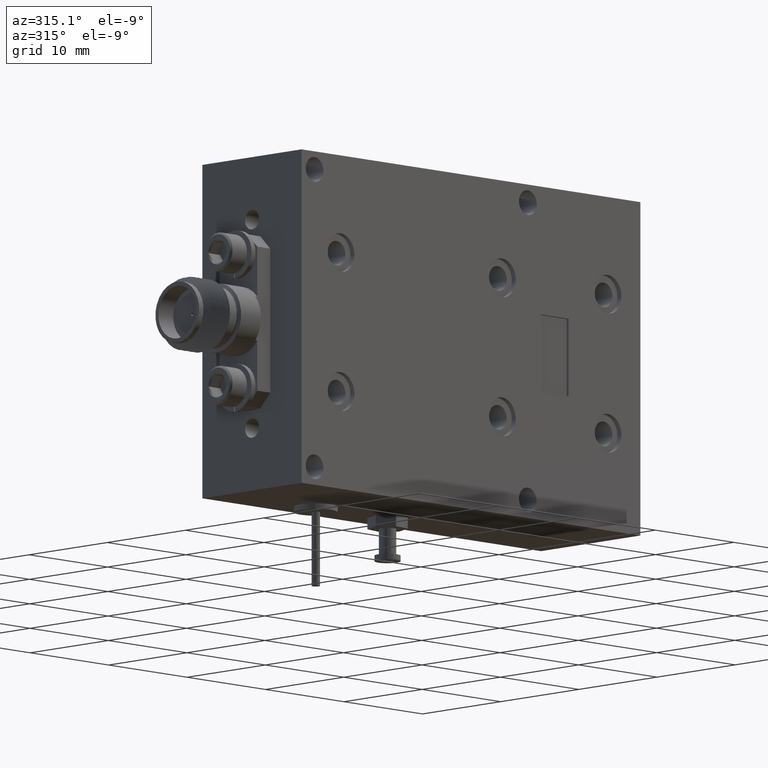
[diagram: clean part render]
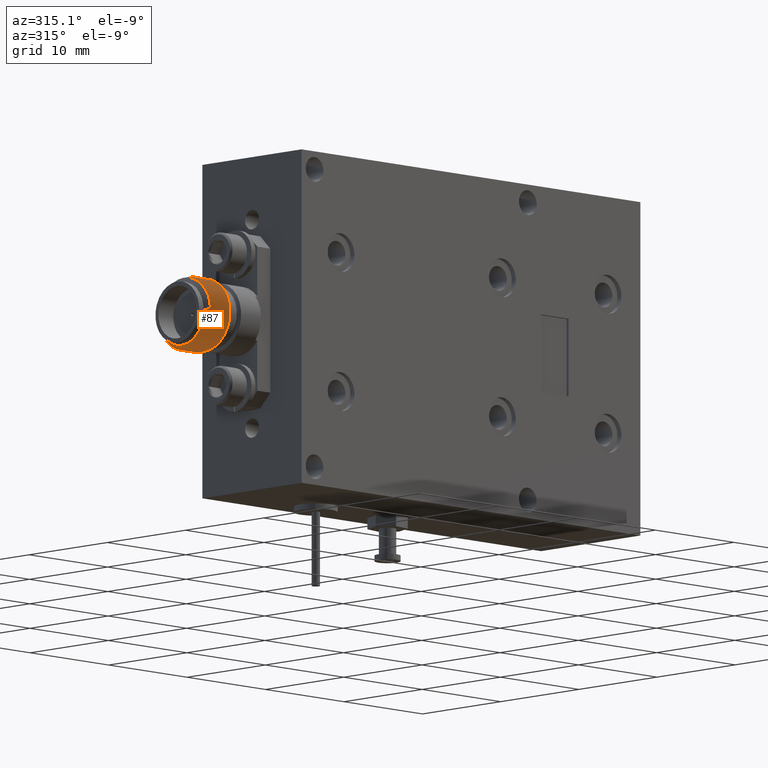
[diagram: same view with one face highlighted and labeled with its STEP entity id]
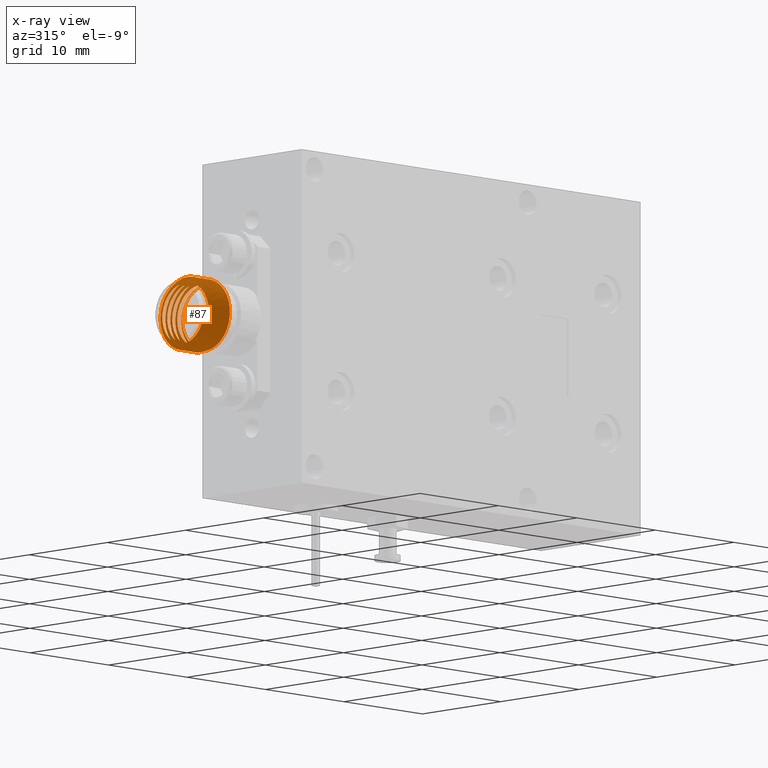
[diagram: x-ray of the same camera — body ghosted, the highlighted face saturated]
A machine part, auxiliary view. The second image highlights one B-rep face of the part: STEP entity #87.
The next image is the same camera in x-ray: the body ghosted, the highlighted face saturated — about 0% of this face is hidden behind the body in this view.
In plain terms, the highlighted face is a freeform B-spline surface patch.
Its self-contained STEP definition (entity closure, byte-faithful):
#30 = CARTESIAN_POINT ( 'NONE',  ( -0.8983333333333342100, 0.1945669872981078100, -0.09551279441628693400 ) ) ;
#87 = ADVANCED_FACE ( 'NONE', ( #4660 ), #1472, .F. ) ;
#122 = CARTESIAN_POINT ( 'NONE',  ( -0.9462500000000008100, 0.2500000000000003900, -0.1275170592217165500 ) ) ;
#131 = CARTESIAN_POINT ( 'NONE',  ( -0.8303468447427854200, 0.1787019060655348800, 0.08754802019685041500 ) ) ;
#164 = CARTESIAN_POINT ( 'NONE',  ( -0.8358333333333345400, 0.3054330127018927700, 0.09651279441628932100 ) ) ;
#184 = ORIENTED_EDGE ( 'NONE', *, *, #8806, .F. ) ;
#208 = CARTESIAN_POINT ( 'NONE',  ( -0.9150000000000008100, 0.1174833395016044000, 0.0005000000000011703000 ) ) ;
#252 = CARTESIAN_POINT ( 'NONE',  ( -0.8337500000000012100, 0.2500000000000002200, 0.1285170592217189100 ) ) ;
#270 = CARTESIAN_POINT ( 'NONE',  ( -0.9045833333333344100, 0.3825166604983957800, -0.07600852961085813300 ) ) ;
#292 =( BOUNDED_CURVE ( )  B_SPLINE_CURVE ( 2, ( #9619, #4553, #8720, #1364, #11842, #1495, #3597, #6496, #2562, #1313, #354, #8765, #12790, #9802, #10884, #7625, #11924, #270, #6543, #8642, #7532, #3431, #311, #2420, #3476, #13008, #6804, #675, #4728, #9848, #4774, #6844, #6709, #6755, #578, #2693, #12105, #3646, #1585, #12056, #8936, #3698, #10972, #9991, #12010, #5851, #13137, #10926, #7892 ),
 .UNSPECIFIED., .F., .T. ) 
 B_SPLINE_CURVE_WITH_KNOTS ( ( 3, 2, 2, 2, 2, 2, 2, 2, 2, 2, 2, 2, 2, 2, 2, 2, 2, 2, 2, 2, 2, 2, 2, 2, 3 ),
 ( 0.1428571428571428500, 0.1666666666666666600, 0.1904761904761904700, 0.2142857142857142700, 0.2380952380952380800, 0.2619047619047619200, 0.2857142857142857000, 0.3095238095238095300, 0.3333333333333333100, 0.3571428571428571500, 0.3809523809523809300, 0.4047619047619047700, 0.4285714285714285500, 0.4523809523809523800, 0.4761904761904761600, 0.5000000000000000000, 0.5238095238095238400, 0.5476190476190476700, 0.5714285714285714000, 0.5952380952380952300, 0.6190476190476190700, 0.6428571428571427900, 0.6666666666666665200, 0.6904761904761904700, 0.7021188828821798300 ),
 .UNSPECIFIED. ) 
 CURVE ( )  GEOMETRIC_REPRESENTATION_ITEM ( )  RATIONAL_B_SPLINE_CURVE ( ( 1.000000000000000000, 0.8660254037844387100, 1.000000000000000000, 0.8660254037844387100, 1.000000000000000000, 0.8660254037844387100, 1.000000000000000000, 0.8660254037844387100, 1.000000000000000000, 0.8660254037844387100, 1.000000000000000000, 0.8660254037844387100, 1.000000000000000000, 0.8660254037844387100, 1.000000000000000000, 0.8660254037844387100, 1.000000000000000000, 0.8660254037844387100, 1.000000000000000000, 0.8660254037844387100, 1.000000000000000000, 0.8660254037844387100, 1.000000000000000000, 0.8660254037844387100, 1.000000000000000000, 0.8660254037844387100, 1.000000000000000000, 0.8660254037844387100, 1.000000000000000000, 0.8660254037844387100, 1.000000000000000000, 0.8660254037844387100, 1.000000000000000000, 0.8660254037844387100, 1.000000000000000000, 0.8660254037844387100, 1.000000000000000000, 0.8660254037844387100, 1.000000000000000000, 0.8660254037844387100, 1.000000000000000000, 0.8660254037844387100, 1.000000000000000000, 0.8660254037844387100, 1.000000000000000000, 0.8660254037844387100, 1.000000000000000000, 0.9344873494139149800, 0.9330451645437170000 ) ) 
 REPRESENTATION_ITEM ( '' )  );
#297 = CARTESIAN_POINT ( 'NONE',  ( -0.9400000000000006100, 0.1174833395016042800, 0.0005000000000010336900 ) ) ;
#311 = CARTESIAN_POINT ( 'NONE',  ( -0.8941666666666675500, 0.1837416697508025600, 0.1152627944162896400 ) ) ;
#338 = CARTESIAN_POINT ( 'NONE',  ( -0.8962500000000009900, 0.2500000000000003900, 0.1535170592217190200 ) ) ;
#354 = CARTESIAN_POINT ( 'NONE',  ( -0.9191666666666673500, 0.1837416697508022800, 0.1152627944162895000 ) ) ;
#385 = CARTESIAN_POINT ( 'NONE',  ( -0.8566666666666676900, 0.3162583302491979700, -0.1142627944162871000 ) ) ;
#433 = CARTESIAN_POINT ( 'NONE',  ( -0.8691666666666676400, 0.1837416697508022800, 0.1152627944162895000 ) ) ;
#519 = CARTESIAN_POINT ( 'NONE',  ( -0.8900000000000009000, 0.1174833395016044000, 0.0005000000000010336900 ) ) ;
#578 = CARTESIAN_POINT ( 'NONE',  ( -0.8691666666666676400, 0.1837416697508025600, 0.1152627944162895000 ) ) ;
#606 = CARTESIAN_POINT ( 'NONE',  ( -0.8402521300887770800, 0.1312434325007503200, -0.05179399979166712100 ) ) ;
#655 = CARTESIAN_POINT ( 'NONE',  ( -0.8421324865405186400, 0.1360268255377178600, 0.06810754996771720100 ) ) ;
#656 = VERTEX_POINT ( 'NONE', #9583 ) ;
#675 = CARTESIAN_POINT ( 'NONE',  ( -0.8837500000000008100, 0.2499999999999997500, -0.1525170592217167400 ) ) ;
#689 = CARTESIAN_POINT ( 'NONE',  ( -0.8379412432702687500, 0.2499999999994674800, -0.1247572142074404900 ) ) ;
#702 = CARTESIAN_POINT ( 'NONE',  ( -0.8391733376476385700, 0.1752176390169134500, -0.1027864727182624400 ) ) ;
#735 = CARTESIAN_POINT ( 'NONE',  ( -0.8335655439545212000, 0.3457105285942939600, 0.06941069041169757600 ) ) ;
#738 = CARTESIAN_POINT ( 'NONE',  ( -0.9212500000000012300, 0.2500000000000002200, -0.1275170592217167200 ) ) ;
#775 = CARTESIAN_POINT ( 'NONE',  ( -0.8369373838376272800, 0.3097551437346788800, -0.1078880589665458200 ) ) ;
#821 = CARTESIAN_POINT ( 'NONE',  ( -0.8754166666666677300, 0.1391339745962156000, -0.06350852961085751100 ) ) ;
#870 = CARTESIAN_POINT ( 'NONE',  ( -0.9504166666666674600, 0.1391339745962156000, -0.06350852961085766400 ) ) ;
#922 = CARTESIAN_POINT ( 'NONE',  ( -0.9358333333333339600, 0.3054330127018929400, 0.09651279441628932100 ) ) ;
#949 = CARTESIAN_POINT ( 'NONE',  ( -0.9400000000000006100, 0.3608660254037848700, 0.0005000000000010193800 ) ) ;
#990 = CARTESIAN_POINT ( 'NONE',  ( -0.9566666666666677800, 0.1945669872981077300, 0.09651279441628932100 ) ) ;
#1033 = CARTESIAN_POINT ( 'NONE',  ( -0.9670833333333344100, 0.3608660254037851000, -0.06350852961085784500 ) ) ;
#1076 = CARTESIAN_POINT ( 'NONE',  ( -0.8962500000000009900, 0.2500000000000003900, -0.1275170592217165500 ) ) ;
#1161 = CARTESIAN_POINT ( 'NONE',  ( -0.8483333333333343800, 0.1945669872981078100, -0.09551279441628721100 ) ) ;
#1205 = CARTESIAN_POINT ( 'NONE',  ( -0.8296324865405186900, 0.1546478170536250100, 0.05706179626031840400 ) ) ;
#1207 = CARTESIAN_POINT ( 'NONE',  ( -0.9504166666666679100, 0.3825166604983960500, 0.07700852961085970200 ) ) ;
#1255 = CARTESIAN_POINT ( 'NONE',  ( -0.8587500000000012300, 0.2500000000000002200, 0.1285170592217189100 ) ) ;
#1269 = VERTEX_POINT ( 'NONE', #11591 ) ;
#1298 = CARTESIAN_POINT ( 'NONE',  ( -0.9650000000000010800, 0.1174833395016042800, 0.0005000000000010336900 ) ) ;
#1313 = CARTESIAN_POINT ( 'NONE',  ( -0.9212500000000010100, 0.2500000000000003900, 0.1535170592217190400 ) ) ;
#1348 = CARTESIAN_POINT ( 'NONE',  ( -0.8566666666666676900, 0.1945669872981078700, 0.09651279441628946000 ) ) ;
#1364 = CARTESIAN_POINT ( 'NONE',  ( -0.9337500000000011900, 0.2500000000000000600, -0.1525170592217167400 ) ) ;
#1393 = CARTESIAN_POINT ( 'NONE',  ( -0.8420833333333341800, 0.1174833395016044200, 0.07700852961086003500 ) ) ;
#1437 = CARTESIAN_POINT ( 'NONE',  ( -0.8295833333333348900, 0.3825166604983958900, -0.07600852961085798100 ) ) ;
#1472 =( BOUNDED_SURFACE ( )  B_SPLINE_SURFACE ( 1, 2, ( 
 ( #5272, #10365, #11518, #6349, #4225, #1033, #5146, #7209, #12411, #6184, #990, #3045, #5236, #7295, #7251, #122, #12549, #8208, #949, #10500, #9255, #8306, #6312, #2047, #4263, #10414, #2096, #3173, #9340, #9299, #3087, #8397, #4178, #10315, #7337, #11468, #12505, #6268, #30, #1076, #4095, #2185, #9419, #5318, #3218, #8360, #2141, #9383, #6483, #4398, #6526, #12727, #3260, #8482, #11644, #4441, #10594, #1255, #1348, #10552, #2272, #3460, #1161, #9649, #9466, #8628, #6441, #9512, #164, #252, #6572, #5362, #7383, #5544, #12684, #3354, #8530, #2319, #2362, #9565, #8581, #3311, #7516, #10740, #10641 ),
 ( #1298, #11693, #9602, #7430, #3408, #11729, #5446, #1207, #6392, #10687, #5500, #12768, #297, #4304, #7566, #2404, #4485, #5407, #11775, #12823, #8438, #2228, #4351, #11602, #208, #12638, #7471, #2591, #5623, #13031, #9784, #5704, #1530, #338, #2628, #8707, #519, #2452, #3586, #11999, #5745, #12904, #9832, #4671, #12994, #8796, #433, #7610, #9879, #7743, #6738, #7788, #385, #7694, #1577, #6659, #3504, #5668, #6696, #1393, #7656, #1482, #2549, #11951, #10779, #1437, #12940, #3630, #8753, #11873, #8668, #2496, #4580, #8836, #10870, #3545, #9700, #10823, #3685, #10914, #10955, #12863, #4535, #4626, #11913 ) ),
 .UNSPECIFIED., .F., .F., .T. ) 
 B_SPLINE_SURFACE_WITH_KNOTS ( ( 2, 2 ),
 ( 3, 2, 2, 2, 2, 2, 2, 2, 2, 2, 2, 2, 2, 2, 2, 2, 2, 2, 2, 2, 2, 2, 2, 2, 2, 2, 2, 2, 2, 2, 2, 2, 2, 2, 2, 2, 2, 2, 2, 2, 2, 2, 3 ),
 ( 0.0000000000000000000, 1.000000000000000000 ),
 ( 0.0000000000000000000, 0.02380952380952380800, 0.04761904761904761600, 0.07142857142857142500, 0.09523809523809523300, 0.1190476190476190400, 0.1428571428571428500, 0.1666666666666666600, 0.1904761904761904700, 0.2142857142857142700, 0.2380952380952380800, 0.2619047619047619200, 0.2857142857142857000, 0.3095238095238095300, 0.3333333333333333100, 0.3571428571428571500, 0.3809523809523809300, 0.4047619047619047700, 0.4285714285714285500, 0.4523809523809523800, 0.4761904761904761600, 0.5000000000000000000, 0.5238095238095238400, 0.5476190476190476700, 0.5714285714285714000, 0.5952380952380952300, 0.6190476190476190700, 0.6428571428571429000, 0.6666666666666666300, 0.6904761904761904700, 0.7142857142857143000, 0.7380952380952381400, 0.7619047619047618600, 0.7857142857142857000, 0.8095238095238095300, 0.8333333333333333700, 0.8571428571428571000, 0.8809523809523809300, 0.9047619047619047700, 0.9285714285714286000, 0.9523809523809523300, 0.9761904761904761600, 1.000000000000000000 ),
 .UNSPECIFIED. ) 
 GEOMETRIC_REPRESENTATION_ITEM ( )  RATIONAL_B_SPLINE_SURFACE ( (
 ( 1.000000000000000000, 0.8660254037844387100, 1.000000000000000000, 0.8660254037844387100, 1.000000000000000000, 0.8660254037844387100, 1.000000000000000000, 0.8660254037844387100, 1.000000000000000000, 0.8660254037844387100, 1.000000000000000000, 0.8660254037844387100, 1.000000000000000000, 0.8660254037844387100, 1.000000000000000000, 0.8660254037844387100, 1.000000000000000000, 0.8660254037844387100, 1.000000000000000000, 0.8660254037844387100, 1.000000000000000000, 0.8660254037844387100, 1.000000000000000000, 0.8660254037844387100, 1.000000000000000000, 0.8660254037844387100, 1.000000000000000000, 0.8660254037844387100, 1.000000000000000000, 0.8660254037844387100, 1.000000000000000000, 0.8660254037844387100, 1.000000000000000000, 0.8660254037844387100, 1.000000000000000000, 0.8660254037844387100, 1.000000000000000000, 0.8660254037844387100, 1.000000000000000000, 0.8660254037844387100, 1.000000000000000000, 0.8660254037844387100, 1.000000000000000000, 0.8660254037844387100, 1.000000000000000000, 0.8660254037844387100, 1.000000000000000000, 0.8660254037844387100, 1.000000000000000000, 0.8660254037844387100, 1.000000000000000000, 0.8660254037844387100, 1.000000000000000000, 0.8660254037844387100, 1.000000000000000000, 0.8660254037844387100, 1.000000000000000000, 0.8660254037844387100, 1.000000000000000000, 0.8660254037844387100, 1.000000000000000000, 0.8660254037844387100, 1.000000000000000000, 0.8660254037844387100, 1.000000000000000000, 0.8660254037844387100, 1.000000000000000000, 0.8660254037844387100, 1.000000000000000000, 0.8660254037844387100, 1.000000000000000000, 0.8660254037844387100, 1.000000000000000000, 0.8660254037844387100, 1.000000000000000000, 0.8660254037844387100, 1.000000000000000000, 0.8660254037844387100, 1.000000000000000000, 0.8660254037844387100, 1.000000000000000000, 0.8660254037844387100, 1.000000000000000000, 0.8660254037844387100, 1.000000000000000000),
 ( 1.000000000000000000, 0.8660254037844387100, 1.000000000000000000, 0.8660254037844387100, 1.000000000000000000, 0.8660254037844387100, 1.000000000000000000, 0.8660254037844387100, 1.000000000000000000, 0.8660254037844387100, 1.000000000000000000, 0.8660254037844387100, 1.000000000000000000, 0.8660254037844387100, 1.000000000000000000, 0.8660254037844387100, 1.000000000000000000, 0.8660254037844387100, 1.000000000000000000, 0.8660254037844387100, 1.000000000000000000, 0.8660254037844387100, 1.000000000000000000, 0.8660254037844387100, 1.000000000000000000, 0.8660254037844387100, 1.000000000000000000, 0.8660254037844387100, 1.000000000000000000, 0.8660254037844387100, 1.000000000000000000, 0.8660254037844387100, 1.000000000000000000, 0.8660254037844387100, 1.000000000000000000, 0.8660254037844387100, 1.000000000000000000, 0.8660254037844387100, 1.000000000000000000, 0.8660254037844387100, 1.000000000000000000, 0.8660254037844387100, 1.000000000000000000, 0.8660254037844387100, 1.000000000000000000, 0.8660254037844387100, 1.000000000000000000, 0.8660254037844387100, 1.000000000000000000, 0.8660254037844387100, 1.000000000000000000, 0.8660254037844387100, 1.000000000000000000, 0.8660254037844387100, 1.000000000000000000, 0.8660254037844387100, 1.000000000000000000, 0.8660254037844387100, 1.000000000000000000, 0.8660254037844387100, 1.000000000000000000, 0.8660254037844387100, 1.000000000000000000, 0.8660254037844387100, 1.000000000000000000, 0.8660254037844387100, 1.000000000000000000, 0.8660254037844387100, 1.000000000000000000, 0.8660254037844387100, 1.000000000000000000, 0.8660254037844387100, 1.000000000000000000, 0.8660254037844387100, 1.000000000000000000, 0.8660254037844387100, 1.000000000000000000, 0.8660254037844387100, 1.000000000000000000, 0.8660254037844387100, 1.000000000000000000, 0.8660254037844387100, 1.000000000000000000, 0.8660254037844387100, 1.000000000000000000) ) ) 
 REPRESENTATION_ITEM ( '' )  SURFACE ( )  );
#1482 = CARTESIAN_POINT ( 'NONE',  ( -0.8379166666666675300, 0.1174833395016042600, -0.07600852961085763400 ) ) ;
#1495 = CARTESIAN_POINT ( 'NONE',  ( -0.9295833333333342100, 0.3825166604983957800, -0.07600852961085813300 ) ) ;
#1530 = CARTESIAN_POINT ( 'NONE',  ( -0.8983333333333342100, 0.3162583302491982500, 0.1152627944162892300 ) ) ;
#1577 = CARTESIAN_POINT ( 'NONE',  ( -0.8525000000000010300, 0.3825166604983962200, 0.0005000000000010181800 ) ) ;
#1585 = CARTESIAN_POINT ( 'NONE',  ( -0.8608333333333343400, 0.1837416697508018300, -0.1142627944162869800 ) ) ;
#1697 = CARTESIAN_POINT ( 'NONE',  ( -0.8380354135476145700, 0.2443381568307403100, -0.1249203219123426300 ) ) ;
#1734 = CARTESIAN_POINT ( 'NONE',  ( -0.8318335030740544600, 0.2578139484000208600, 0.1151782978681266400 ) ) ;
#1748 = CARTESIAN_POINT ( 'NONE',  ( -0.8381305370760091500, 0.2385963754304256700, -0.1246940583174619100 ) ) ;
#1780 = CARTESIAN_POINT ( 'NONE',  ( -0.9066666666666675100, 0.1945669872981078700, 0.09651279441628946000 ) ) ;
#1819 = CARTESIAN_POINT ( 'NONE',  ( -0.8365768976475663800, 0.3289236849974518900, -0.09402482295675247700 ) ) ;
#1822 = CARTESIAN_POINT ( 'NONE',  ( -0.9170833333333345800, 0.3608660254037850400, -0.06350852961085799700 ) ) ;
#1877 = CARTESIAN_POINT ( 'NONE',  ( -0.8525000000000010300, 0.1391339745962153200, 0.0005000000000014422200 ) ) ;
#1924 = CARTESIAN_POINT ( 'NONE',  ( -0.8378107045315984500, 0.2578484410004216500, -0.1245311144797410800 ) ) ;
#1927 = CARTESIAN_POINT ( 'NONE',  ( -0.8670833333333344300, 0.3608660254037847600, -0.06350852961085816400 ) ) ;
#1967 = CARTESIAN_POINT ( 'NONE',  ( -0.9087500000000010600, 0.2500000000000003900, 0.1285170592217190500 ) ) ;
#2047 = CARTESIAN_POINT ( 'NONE',  ( -0.9295833333333342100, 0.1391339745962154300, 0.06450852961086006600 ) ) ;
#2063 = CARTESIAN_POINT ( 'NONE',  ( -0.8296324865405185800, 0.1546478170536250100, 0.05706179626031840400 ) ) ;
#2096 = CARTESIAN_POINT ( 'NONE',  ( -0.9233333333333340100, 0.1945669872981078100, -0.09551279441628721100 ) ) ;
#2141 = CARTESIAN_POINT ( 'NONE',  ( -0.8816666666666676000, 0.1945669872981077300, 0.09651279441628932100 ) ) ;
#2185 = CARTESIAN_POINT ( 'NONE',  ( -0.8920833333333346700, 0.3608660254037852100, -0.06350852961085784500 ) ) ;
#2192 = CARTESIAN_POINT ( 'NONE',  ( -0.8308261805167598300, 0.2030860000215450600, 0.1036912406214401400 ) ) ;
#2228 = CARTESIAN_POINT ( 'NONE',  ( -0.9212500000000010100, 0.2500000000000003900, 0.1535170592217190200 ) ) ;
#2272 = CARTESIAN_POINT ( 'NONE',  ( -0.8525000000000010300, 0.1391339745962153200, 0.0005000000000010325000 ) ) ;
#2283 = CARTESIAN_POINT ( 'NONE',  ( -0.8296324865405186900, 0.1546478170536250100, 0.05706179626031840400 ) ) ;
#2319 = CARTESIAN_POINT ( 'NONE',  ( -0.8170833333333346000, 0.3608660254037851000, -0.06350852961085784500 ) ) ;
#2362 = CARTESIAN_POINT ( 'NONE',  ( -0.8150000000000012800, 0.3608660254037848700, 0.0005000000000008827700 ) ) ;
#2386 = B_SPLINE_CURVE_WITH_KNOTS ( 'NONE', 3,
 ( #655, #8876, #12214, #13163, #7961, #5965, #3850, #6782, #9916, #4802, #3720, #6824, #606, #5833, #13119, #7871, #6874, #702, #8918, #2722, #7915, #5872, #3804, #1748, #1697, #10015 ),
 .UNSPECIFIED., .F., .F.,
 ( 4, 2, 2, 2, 2, 2, 2, 2, 2, 2, 2, 2, 4 ),
 ( 1.659927335255204000E-017, 0.0008579063843754446400, 0.001286859576563159000, 0.001715812768750873400, 0.002144765960938587700, 0.002573719153126302400, 0.003431625537501731700, 0.004289531921877161500, 0.004718485114064875300, 0.005147438306252589100, 0.006005344690628016700, 0.006434297882815731400, 0.006863251075003446900 ),
 .UNSPECIFIED. ) ;
#2404 = CARTESIAN_POINT ( 'NONE',  ( -0.9337500000000013000, 0.2500000000000002200, -0.1525170592217169100 ) ) ;
#2420 = CARTESIAN_POINT ( 'NONE',  ( -0.8920833333333343400, 0.1174833395016045800, 0.07700852961086049300 ) ) ;
#2452 = CARTESIAN_POINT ( 'NONE',  ( -0.8879166666666676900, 0.1174833395016044200, -0.07600852961085748100 ) ) ;
#2496 = CARTESIAN_POINT ( 'NONE',  ( -0.8170833333333343800, 0.1174833395016044200, 0.07700852961086003500 ) ) ;
#2549 = CARTESIAN_POINT ( 'NONE',  ( -0.8358333333333345400, 0.1837416697508021100, -0.1142627944162871000 ) ) ;
#2562 = CARTESIAN_POINT ( 'NONE',  ( -0.9233333333333340100, 0.3162583302491983600, 0.1152627944162892300 ) ) ;
#2591 = CARTESIAN_POINT ( 'NONE',  ( -0.9087500000000012800, 0.2500000000000002200, -0.1525170592217167400 ) ) ;
#2628 = CARTESIAN_POINT ( 'NONE',  ( -0.8941666666666675500, 0.1837416697508022800, 0.1152627944162893700 ) ) ;
#2693 = CARTESIAN_POINT ( 'NONE',  ( -0.8670833333333342100, 0.1174833395016045800, 0.07700852961086049300 ) ) ;
#2722 = CARTESIAN_POINT ( 'NONE',  ( -0.8388482190470728500, 0.1946557617826109300, -0.1141703653398023200 ) ) ;
#2754 = CARTESIAN_POINT ( 'NONE',  ( -0.8376810943759308600, 0.2655985490232556900, -0.1235754303303966100 ) ) ;
#2792 = CARTESIAN_POINT ( 'NONE',  ( -0.8338413869221571500, 0.3543840754559844900, 0.05640911240565875400 ) ) ;
#2796 = CARTESIAN_POINT ( 'NONE',  ( -0.9045833333333344100, 0.1391339745962154300, 0.06450852961086039900 ) ) ;
#2834 = CARTESIAN_POINT ( 'NONE',  ( -0.8733333333333342900, 0.1945669872981078100, -0.09551279441628693400 ) ) ;
#2884 = CARTESIAN_POINT ( 'NONE',  ( -0.8566666666666676900, 0.1945669872981079800, 0.09651279441628959900 ) ) ;
#2965 = CARTESIAN_POINT ( 'NONE',  ( -0.9316666666666673100, 0.1945669872981077300, 0.09651279441628932100 ) ) ;
#3045 = CARTESIAN_POINT ( 'NONE',  ( -0.9545833333333341200, 0.1391339745962154300, 0.06450852961086006600 ) ) ;
#3087 = CARTESIAN_POINT ( 'NONE',  ( -0.9150000000000008100, 0.3608660254037848700, 0.0005000000000010193800 ) ) ;
#3173 = CARTESIAN_POINT ( 'NONE',  ( -0.9212500000000012300, 0.2500000000000003900, -0.1275170592217165500 ) ) ;
#3218 = CARTESIAN_POINT ( 'NONE',  ( -0.8858333333333342500, 0.3054330127018927700, 0.09651279441628932100 ) ) ;
#3260 = CARTESIAN_POINT ( 'NONE',  ( -0.8691666666666676400, 0.3054330127018927700, -0.09551279441628721100 ) ) ;
#3311 = CARTESIAN_POINT ( 'NONE',  ( -0.8087500000000010800, 0.2500000000000003900, 0.1285170592217187400 ) ) ;
#3354 = CARTESIAN_POINT ( 'NONE',  ( -0.8212500000000010300, 0.2500000000000003900, -0.1275170592217167200 ) ) ;
#3408 = CARTESIAN_POINT ( 'NONE',  ( -0.9566666666666672200, 0.3162583302491982500, -0.1142627944162871000 ) ) ;
#3431 = CARTESIAN_POINT ( 'NONE',  ( -0.8962500000000009900, 0.2500000000000008900, 0.1535170592217188500 ) ) ;
#3460 = CARTESIAN_POINT ( 'NONE',  ( -0.8504166666666674900, 0.1391339745962154300, -0.06350852961085766400 ) ) ;
#3476 = CARTESIAN_POINT ( 'NONE',  ( -0.8900000000000009000, 0.1174833395016044000, 0.0005000000000011703000 ) ) ;
#3504 = CARTESIAN_POINT ( 'NONE',  ( -0.8483333333333343800, 0.3162583302491982500, 0.1152627944162892300 ) ) ;
#3545 = CARTESIAN_POINT ( 'NONE',  ( -0.8087500000000010800, 0.2500000000000002200, -0.1525170592217167400 ) ) ;
#3586 = CARTESIAN_POINT ( 'NONE',  ( -0.8858333333333342500, 0.1837416697508021100, -0.1142627944162872400 ) ) ;
#3597 = CARTESIAN_POINT ( 'NONE',  ( -0.9275000000000006600, 0.3825166604983960500, 0.0005000000000010181800 ) ) ;
#3630 = CARTESIAN_POINT ( 'NONE',  ( -0.8254166666666679100, 0.3825166604983958900, 0.07700852961085984100 ) ) ;
#3646 = CARTESIAN_POINT ( 'NONE',  ( -0.8629166666666678900, 0.1174833395016042800, -0.07600852961085748100 ) ) ;
#3685 = CARTESIAN_POINT ( 'NONE',  ( -0.8025000000000013200, 0.3825166604983960500, 0.0005000000000010181800 ) ) ;
#3698 = CARTESIAN_POINT ( 'NONE',  ( -0.8545833333333345800, 0.3825166604983954400, -0.07600852961085845200 ) ) ;
#3720 = CARTESIAN_POINT ( 'NONE',  ( -0.8406930208675336100, 0.1223800921195780400, -0.02501633295677895300 ) ) ;
#3792 = CARTESIAN_POINT ( 'NONE',  ( -0.8331540262986965000, 0.3295075033588833500, 0.08665119897513126600 ) ) ;
#3804 = CARTESIAN_POINT ( 'NONE',  ( -0.8383162026348400800, 0.2273464212998994600, -0.1234809885701353000 ) ) ;
#3841 = CARTESIAN_POINT ( 'NONE',  ( -0.8691666666666676400, 0.3054330127018924900, -0.09551279441628733600 ) ) ;
#3850 = CARTESIAN_POINT ( 'NONE',  ( -0.8411809607611633300, 0.1192696713304595100, 0.008735268253938652200 ) ) ;
#3880 = CARTESIAN_POINT ( 'NONE',  ( -0.8374237707686791300, 0.2809033750555866600, -0.1202143536808234800 ) ) ;
#3883 = CARTESIAN_POINT ( 'NONE',  ( -0.9379166666666678400, 0.3608660254037848700, 0.06450852961085973300 ) ) ;
#3927 = CARTESIAN_POINT ( 'NONE',  ( -0.8361955939364554800, 0.3454570550508379000, -0.07742779841996765000 ) ) ;
#3932 = CARTESIAN_POINT ( 'NONE',  ( -0.8962500000000009900, 0.2500000000000002200, -0.1275170592217165500 ) ) ;
#3973 = CARTESIAN_POINT ( 'NONE',  ( -0.8342534777683874300, 0.3640764629710779900, 0.03482779135702506600 ) ) ;
#3975 = CARTESIAN_POINT ( 'NONE',  ( -0.8879166666666676900, 0.3608660254037848700, 0.06450852961085973300 ) ) ;
#4025 = CARTESIAN_POINT ( 'NONE',  ( -0.8587500000000012300, 0.2500000000000005600, 0.1285170592217189100 ) ) ;
#4095 = CARTESIAN_POINT ( 'NONE',  ( -0.8941666666666675500, 0.3054330127018927700, -0.09551279441628721100 ) ) ;
#4134 = CARTESIAN_POINT ( 'NONE',  ( -0.9525000000000011200, 0.1391339745962153200, 0.0005000000000011691100 ) ) ;
#4137 =( BOUNDED_CURVE ( )  B_SPLINE_CURVE ( 2, ( #12163, #870, #5021, #8036, #4975, #4886, #12293, #3883, #922, #9125, #2965, #11248, #5909, #9178, #13194, #738, #9043, #1822, #10136, #7989, #8173, #1967, #1780, #2796, #10048, #9085, #6003, #3932, #11210, #6043, #13288, #3975, #12204, #10187, #5064, #7038, #7085, #821, #2834, #11172, #3841, #1927, #10236, #4923, #8084, #4025, #2884, #5954, #1877, #8126, #13242, #11293, #6098, #13372, #7133, #6143, #11396, #8321, #12521, #8280, #2063 ),
 .UNSPECIFIED., .F., .F. ) 
 B_SPLINE_CURVE_WITH_KNOTS ( ( 3, 2, 2, 2, 2, 2, 2, 2, 2, 2, 2, 2, 2, 2, 2, 2, 2, 2, 2, 2, 2, 2, 2, 2, 2, 2, 2, 2, 2, 2, 3 ),
 ( 0.1428571428571428500, 0.1666666666666666600, 0.1904761904761904700, 0.2142857142857142700, 0.2380952380952380800, 0.2619047619047619200, 0.2857142857142857000, 0.3095238095238095300, 0.3333333333333333100, 0.3571428571428571500, 0.3809523809523809300, 0.4047619047619047700, 0.4285714285714285500, 0.4523809523809523800, 0.4761904761904761600, 0.5000000000000000000, 0.5238095238095237200, 0.5476190476190476700, 0.5714285714285714000, 0.5952380952380951200, 0.6190476190476190700, 0.6428571428571427900, 0.6666666666666665200, 0.6904761904761904700, 0.7142857142857141900, 0.7380952380952381400, 0.7619047619047618600, 0.7857142857142855900, 0.8095238095238095300, 0.8333333333333332600, 0.8449760257393235100 ),
 .UNSPECIFIED. ) 
 CURVE ( )  GEOMETRIC_REPRESENTATION_ITEM ( )  RATIONAL_B_SPLINE_CURVE ( ( 1.000000000000000000, 0.8660254037844387100, 1.000000000000000000, 0.8660254037844387100, 1.000000000000000000, 0.8660254037844387100, 1.000000000000000000, 0.8660254037844387100, 1.000000000000000000, 0.8660254037844387100, 1.000000000000000000, 0.8660254037844387100, 1.000000000000000000, 0.8660254037844387100, 1.000000000000000000, 0.8660254037844387100, 1.000000000000000000, 0.8660254037844387100, 1.000000000000000000, 0.8660254037844387100, 1.000000000000000000, 0.8660254037844387100, 1.000000000000000000, 0.8660254037844387100, 1.000000000000000000, 0.8660254037844387100, 1.000000000000000000, 0.8660254037844387100, 1.000000000000000000, 0.8660254037844387100, 1.000000000000000000, 0.8660254037844387100, 1.000000000000000000, 0.8660254037844387100, 1.000000000000000000, 0.8660254037844387100, 1.000000000000000000, 0.8660254037844387100, 1.000000000000000000, 0.8660254037844387100, 1.000000000000000000, 0.8660254037844387100, 1.000000000000000000, 0.8660254037844387100, 1.000000000000000000, 0.8660254037844387100, 1.000000000000000000, 0.8660254037844387100, 1.000000000000000000, 0.8660254037844387100, 1.000000000000000000, 0.8660254037844387100, 1.000000000000000000, 0.8660254037844387100, 1.000000000000000000, 0.8660254037844387100, 1.000000000000000000, 0.8660254037844387100, 1.000000000000000000, 0.9344873494139096500, 0.9330451645437166700 ) ) 
 REPRESENTATION_ITEM ( '' )  );
#4178 = CARTESIAN_POINT ( 'NONE',  ( -0.9108333333333341600, 0.3054330127018927700, 0.09651279441628932100 ) ) ;
#4225 = CARTESIAN_POINT ( 'NONE',  ( -0.9691666666666671800, 0.3054330127018927700, -0.09551279441628721100 ) ) ;
#4257 = EDGE_LOOP ( 'NONE', ( #184, #6790, #12966, #13028, #9112, #12405 ) ) ;
#4263 = CARTESIAN_POINT ( 'NONE',  ( -0.9275000000000006600, 0.1391339745962153200, 0.0005000000000010325000 ) ) ;
#4304 = CARTESIAN_POINT ( 'NONE',  ( -0.9379166666666672900, 0.1174833395016044200, -0.07600852961085763400 ) ) ;
#4348 = B_SPLINE_CURVE_WITH_KNOTS ( 'NONE', 3,
 ( #689, #1924, #2754, #3880, #12202, #11167, #775, #11207, #1819, #3927, #12158, #4971, #7081, #9082, #8080, #12242, #7951, #10181, #3973, #11246, #2792, #735, #4881, #3792, #10006, #11076, #4836, #12115, #13151, #6910, #1734, #13192 ),
 .UNSPECIFIED., .F., .F.,
 ( 4, 2, 2, 2, 2, 2, 2, 2, 2, 2, 2, 2, 2, 2, 2, 4 ),
 ( 0.006863251075003446900, 0.007457865535476585100, 0.008052479995949723300, 0.008647094456422862300, 0.009241708916895999600, 0.01043093783784227400, 0.01102555229831541300, 0.01162016675878855100, 0.01221478121926169000, 0.01280939567973482700, 0.01340401014020796400, 0.01399862460068110300, 0.01459323906115424200, 0.01518785352162738000, 0.01578246798210052000, 0.01637708244257365600 ),
 .UNSPECIFIED. ) ;
#4351 = CARTESIAN_POINT ( 'NONE',  ( -0.9191666666666673500, 0.1837416697508022800, 0.1152627944162893700 ) ) ;
#4398 = CARTESIAN_POINT ( 'NONE',  ( -0.8754166666666677300, 0.1391339745962154300, -0.06350852961085766400 ) ) ;
#4414 = EDGE_CURVE ( 'NONE', #1269, #10742, #10262, .T. ) ;
#4441 = CARTESIAN_POINT ( 'NONE',  ( -0.8629166666666678900, 0.3608660254037848700, 0.06450852961085988500 ) ) ;
#4485 = CARTESIAN_POINT ( 'NONE',  ( -0.9316666666666673100, 0.3162583302491982500, -0.1142627944162872400 ) ) ;
#4503 = CARTESIAN_POINT ( 'NONE',  ( -0.9525000000000011200, 0.1391339745962153200, 0.0005000000000011691100 ) ) ;
#4535 = CARTESIAN_POINT ( 'NONE',  ( -0.7941666666666680200, 0.1837416697508022800, 0.1152627944162895000 ) ) ;
#4553 = CARTESIAN_POINT ( 'NONE',  ( -0.9379166666666677300, 0.1174833395016042800, -0.07600852961085731400 ) ) ;
#4580 = CARTESIAN_POINT ( 'NONE',  ( -0.8150000000000007200, 0.1174833395016044000, 0.0005000000000010336900 ) ) ;
#4626 = CARTESIAN_POINT ( 'NONE',  ( -0.7920833333333343600, 0.1174833395016042600, 0.07700852961086018800 ) ) ;
#4660 = FACE_OUTER_BOUND ( 'NONE', #4257, .T. ) ;
#4671 = CARTESIAN_POINT ( 'NONE',  ( -0.8754166666666677300, 0.3825166604983958900, 0.07700852961085984100 ) ) ;
#4728 = CARTESIAN_POINT ( 'NONE',  ( -0.8816666666666676000, 0.3162583302491979700, -0.1142627944162872400 ) ) ;
#4774 = CARTESIAN_POINT ( 'NONE',  ( -0.8775000000000009500, 0.3825166604983960500, 0.0005000000000008815800 ) ) ;
#4802 = CARTESIAN_POINT ( 'NONE',  ( -0.8407791756518664400, 0.1212331744775496500, -0.01940661995397564500 ) ) ;
#4836 = CARTESIAN_POINT ( 'NONE',  ( -0.8326483196151389700, 0.3033172485948686400, 0.1039194445766494600 ) ) ;
#4881 = CARTESIAN_POINT ( 'NONE',  ( -0.8334274884922153700, 0.3407246178149306900, 0.07549027782088092700 ) ) ;
#4886 = CARTESIAN_POINT ( 'NONE',  ( -0.9420833333333344900, 0.3608660254037850400, -0.06350852961085784500 ) ) ;
#4923 = CARTESIAN_POINT ( 'NONE',  ( -0.8629166666666681100, 0.3608660254037850400, 0.06450852961085973300 ) ) ;
#4971 = CARTESIAN_POINT ( 'NONE',  ( -0.8355217126718765800, 0.3634670239669264800, -0.04243365548546350300 ) ) ;
#4975 = CARTESIAN_POINT ( 'NONE',  ( -0.9441666666666672600, 0.3054330127018927700, -0.09551279441628721100 ) ) ;
#5021 = CARTESIAN_POINT ( 'NONE',  ( -0.9483333333333339200, 0.1945669872981078100, -0.09551279441628733600 ) ) ;
#5064 = CARTESIAN_POINT ( 'NONE',  ( -0.8816666666666676000, 0.1945669872981078700, 0.09651279441628946000 ) ) ;
#5146 = CARTESIAN_POINT ( 'NONE',  ( -0.9650000000000005200, 0.3608660254037848700, 0.0005000000000010193800 ) ) ;
#5236 = CARTESIAN_POINT ( 'NONE',  ( -0.9525000000000011200, 0.1391339745962153200, 0.0005000000000011691100 ) ) ;
#5272 = CARTESIAN_POINT ( 'NONE',  ( -0.9775000000000009200, 0.1391339745962151800, 0.0005000000000010325000 ) ) ;
#5318 = CARTESIAN_POINT ( 'NONE',  ( -0.8879166666666676900, 0.3608660254037848700, 0.06450852961085973300 ) ) ;
#5362 = CARTESIAN_POINT ( 'NONE',  ( -0.8295833333333345600, 0.1391339745962154300, 0.06450852961086006600 ) ) ;
#5407 = CARTESIAN_POINT ( 'NONE',  ( -0.9295833333333342100, 0.3825166604983957800, -0.07600852961085798100 ) ) ;
#5446 = CARTESIAN_POINT ( 'NONE',  ( -0.9525000000000005700, 0.3825166604983960500, 0.0005000000000011546900 ) ) ;
#5500 = CARTESIAN_POINT ( 'NONE',  ( -0.9441666666666672600, 0.1837416697508022800, 0.1152627944162893700 ) ) ;
#5544 = CARTESIAN_POINT ( 'NONE',  ( -0.8254166666666676900, 0.1391339745962156000, -0.06350852961085766400 ) ) ;
#5623 = CARTESIAN_POINT ( 'NONE',  ( -0.9066666666666675100, 0.3162583302491982500, -0.1142627944162871000 ) ) ;
#5668 = CARTESIAN_POINT ( 'NONE',  ( -0.8462500000000012800, 0.2500000000000002200, 0.1535170592217187100 ) ) ;
#5704 = CARTESIAN_POINT ( 'NONE',  ( -0.9004166666666679800, 0.3825166604983958900, 0.07700852961085984100 ) ) ;
#5745 = CARTESIAN_POINT ( 'NONE',  ( -0.8816666666666676000, 0.3162583302491982500, -0.1142627944162871000 ) ) ;
#5833 = CARTESIAN_POINT ( 'NONE',  ( -0.8398842055187626400, 0.1427748923670337200, -0.07144596518122520200 ) ) ;
#5851 = CARTESIAN_POINT ( 'NONE',  ( -0.8462500000000012800, 0.2500000000000007200, 0.1535170592217188500 ) ) ;
#5872 = CARTESIAN_POINT ( 'NONE',  ( -0.8384073816919970200, 0.2218001678372569200, -0.1224990265040926100 ) ) ;
#5909 = CARTESIAN_POINT ( 'NONE',  ( -0.9275000000000006600, 0.1391339745962151800, 0.0005000000000010325000 ) ) ;
#5954 = CARTESIAN_POINT ( 'NONE',  ( -0.8545833333333345800, 0.1391339745962156000, 0.06450852961086021900 ) ) ;
#5965 = CARTESIAN_POINT ( 'NONE',  ( -0.8412621180369590500, 0.1196031109607148000, 0.01436275902941326600 ) ) ;
#6003 = CARTESIAN_POINT ( 'NONE',  ( -0.8983333333333342100, 0.1945669872981078100, -0.09551279441628707200 ) ) ;
#6043 = CARTESIAN_POINT ( 'NONE',  ( -0.8920833333333343400, 0.3608660254037848700, -0.06350852961085816400 ) ) ;
#6098 = CARTESIAN_POINT ( 'NONE',  ( -0.8441666666666678400, 0.3054330127018924900, -0.09551279441628733600 ) ) ;
#6143 = CARTESIAN_POINT ( 'NONE',  ( -0.8379166666666679800, 0.3608660254037850400, 0.06450852961085973300 ) ) ;
#6184 = CARTESIAN_POINT ( 'NONE',  ( -0.9587500000000011000, 0.2500000000000003900, 0.1285170592217187400 ) ) ;
#6214 = EDGE_CURVE ( 'NONE', #7740, #656, #292, .T. ) ;
#6224 = CARTESIAN_POINT ( 'NONE',  ( -0.9400000000000006100, 0.1174833395016042800, 0.0005000000000010336900 ) ) ;
#6268 = CARTESIAN_POINT ( 'NONE',  ( -0.9004166666666677500, 0.1391339745962156000, -0.06350852961085751100 ) ) ;
#6312 = CARTESIAN_POINT ( 'NONE',  ( -0.9316666666666673100, 0.1945669872981077300, 0.09651279441628932100 ) ) ;
#6320 = CARTESIAN_POINT ( 'NONE',  ( -0.8299997839405783800, 0.1652605752494632200, 0.07361354594898925100 ) ) ;
#6349 = CARTESIAN_POINT ( 'NONE',  ( -0.9712500000000010600, 0.2500000000000002200, -0.1275170592217167200 ) ) ;
#6392 = CARTESIAN_POINT ( 'NONE',  ( -0.9483333333333339200, 0.3162583302491982500, 0.1152627944162890900 ) ) ;
#6441 = CARTESIAN_POINT ( 'NONE',  ( -0.8400000000000011900, 0.3608660254037848700, 0.0005000000000010193800 ) ) ;
#6483 = CARTESIAN_POINT ( 'NONE',  ( -0.8775000000000009500, 0.1391339745962151800, 0.0005000000000011691100 ) ) ;
#6496 = CARTESIAN_POINT ( 'NONE',  ( -0.9254166666666676600, 0.3825166604983958900, 0.07700852961085984100 ) ) ;
#6526 = CARTESIAN_POINT ( 'NONE',  ( -0.8733333333333342900, 0.1945669872981078100, -0.09551279441628707200 ) ) ;
#6543 = CARTESIAN_POINT ( 'NONE',  ( -0.9025000000000008600, 0.3825166604983962200, 0.0005000000000006083600 ) ) ;
#6572 = CARTESIAN_POINT ( 'NONE',  ( -0.8316666666666678900, 0.1945669872981077300, 0.09651279441628946000 ) ) ;
#6659 = CARTESIAN_POINT ( 'NONE',  ( -0.8504166666666679300, 0.3825166604983958900, 0.07700852961085984100 ) ) ;
#6696 = CARTESIAN_POINT ( 'NONE',  ( -0.8441666666666678400, 0.1837416697508022800, 0.1152627944162893700 ) ) ;
#6709 = CARTESIAN_POINT ( 'NONE',  ( -0.8733333333333342900, 0.3162583302491983600, 0.1152627944162892300 ) ) ;
#6738 = CARTESIAN_POINT ( 'NONE',  ( -0.8608333333333343400, 0.1837416697508019700, -0.1142627944162871000 ) ) ;
#6755 = CARTESIAN_POINT ( 'NONE',  ( -0.8712500000000010800, 0.2500000000000007200, 0.1535170592217188500 ) ) ;
#6782 = CARTESIAN_POINT ( 'NONE',  ( -0.8410239062734224900, 0.1193172209278340500, -0.002520650655130580100 ) ) ;
#6790 = ORIENTED_EDGE ( 'NONE', *, *, #6214, .F. ) ;
#6804 = CARTESIAN_POINT ( 'NONE',  ( -0.8858333333333342500, 0.1837416697508019700, -0.1142627944162869800 ) ) ;
#6824 = CARTESIAN_POINT ( 'NONE',  ( -0.8404323024637012600, 0.1268534782860378800, -0.04134643459298707100 ) ) ;
#6844 = CARTESIAN_POINT ( 'NONE',  ( -0.8754166666666677300, 0.3825166604983958900, 0.07700852961085970200 ) ) ;
#6874 = CARTESIAN_POINT ( 'NONE',  ( -0.8393451217016644200, 0.1661770444455767900, -0.09598888680534570200 ) ) ;
#6910 = CARTESIAN_POINT ( 'NONE',  ( -0.8319773965223566900, 0.2657696450878158600, 0.1146107082201228400 ) ) ;
#7038 = CARTESIAN_POINT ( 'NONE',  ( -0.8795833333333341600, 0.1391339745962154300, 0.06450852961086021900 ) ) ;
#7081 = CARTESIAN_POINT ( 'NONE',  ( -0.8353875872945499800, 0.3658151772406284000, -0.03485069874811966300 ) ) ;
#7085 = CARTESIAN_POINT ( 'NONE',  ( -0.8775000000000009500, 0.1391339745962151800, 0.0005000000000011691100 ) ) ;
#7133 = CARTESIAN_POINT ( 'NONE',  ( -0.8400000000000011900, 0.3608660254037848700, 0.0005000000000006096600 ) ) ;
#7209 = CARTESIAN_POINT ( 'NONE',  ( -0.9629166666666677500, 0.3608660254037851000, 0.06450852961085973300 ) ) ;
#7251 = CARTESIAN_POINT ( 'NONE',  ( -0.9483333333333339200, 0.1945669872981078100, -0.09551279441628721100 ) ) ;
#7295 = CARTESIAN_POINT ( 'NONE',  ( -0.9504166666666674600, 0.1391339745962156000, -0.06350852961085766400 ) ) ;
#7337 = CARTESIAN_POINT ( 'NONE',  ( -0.9066666666666675100, 0.1945669872981077300, 0.09651279441628946000 ) ) ;
#7383 = CARTESIAN_POINT ( 'NONE',  ( -0.8275000000000012300, 0.1391339745962153200, 0.0005000000000010325000 ) ) ;
#7430 = CARTESIAN_POINT ( 'NONE',  ( -0.9587500000000008800, 0.2500000000000005600, -0.1525170592217169100 ) ) ;
#7441 = CARTESIAN_POINT ( 'NONE',  ( -0.8313368394993115900, 0.2306131802339668500, 0.1130758135693912000 ) ) ;
#7471 = CARTESIAN_POINT ( 'NONE',  ( -0.9108333333333341600, 0.1837416697508022500, -0.1142627944162872400 ) ) ;
#7479 = CARTESIAN_POINT ( 'NONE',  ( -0.8315151956300334000, 0.2403301766206358800, 0.1146269732027492300 ) ) ;
#7491 = VERTEX_POINT ( 'NONE', #4503 ) ;
#7516 = CARTESIAN_POINT ( 'NONE',  ( -0.8066666666666674200, 0.1945669872981077300, 0.09651279441628946000 ) ) ;
#7532 = CARTESIAN_POINT ( 'NONE',  ( -0.8983333333333342100, 0.3162583302491983600, 0.1152627944162890900 ) ) ;
#7566 = CARTESIAN_POINT ( 'NONE',  ( -0.9358333333333339600, 0.1837416697508022500, -0.1142627944162872400 ) ) ;
#7568 = CARTESIAN_POINT ( 'NONE',  ( -0.8379412432702687500, 0.2499999999994674800, -0.1247572142074404900 ) ) ;
#7610 = CARTESIAN_POINT ( 'NONE',  ( -0.8670833333333344300, 0.1174833395016044200, 0.07700852961086003500 ) ) ;
#7625 = CARTESIAN_POINT ( 'NONE',  ( -0.9087500000000010600, 0.2499999999999999200, -0.1525170592217165700 ) ) ;
#7656 = CARTESIAN_POINT ( 'NONE',  ( -0.8400000000000011900, 0.1174833395016044000, 0.0005000000000010336900 ) ) ;
#7694 = CARTESIAN_POINT ( 'NONE',  ( -0.8545833333333345800, 0.3825166604983957800, -0.07600852961085813300 ) ) ;
#7740 = VERTEX_POINT ( 'NONE', #11156 ) ;
#7743 = CARTESIAN_POINT ( 'NONE',  ( -0.8629166666666674400, 0.1174833395016042600, -0.07600852961085763400 ) ) ;
#7788 = CARTESIAN_POINT ( 'NONE',  ( -0.8587500000000007900, 0.2500000000000002200, -0.1525170592217169100 ) ) ;
#7871 = CARTESIAN_POINT ( 'NONE',  ( -0.8394342765532280000, 0.1618254306443761000, -0.09224272388765990300 ) ) ;
#7892 = CARTESIAN_POINT ( 'NONE',  ( -0.8421324865405186400, 0.1360268255377178600, 0.06810754996771720100 ) ) ;
#7915 = CARTESIAN_POINT ( 'NONE',  ( -0.8386761172192909200, 0.2053945379975318800, -0.1184413649943565300 ) ) ;
#7951 = CARTESIAN_POINT ( 'NONE',  ( -0.8346409576368435400, 0.3692475510204529200, 0.01196006435328921300 ) ) ;
#7957 = B_SPLINE_CURVE_WITH_KNOTS ( 'NONE', 1,
 ( #4134, #6224 ),
 .UNSPECIFIED., .F., .F.,
 ( 2, 2 ),
 ( 0.0000000000000000000, 0.0006350000000000049200 ),
 .UNSPECIFIED. ) ;
#7961 = CARTESIAN_POINT ( 'NONE',  ( -0.8414297203145029200, 0.1210007015485640900, 0.02561678319498607300 ) ) ;
#7989 = CARTESIAN_POINT ( 'NONE',  ( -0.9129166666666679300, 0.3608660254037848700, 0.06450852961085988500 ) ) ;
#8036 = CARTESIAN_POINT ( 'NONE',  ( -0.9462500000000009200, 0.2500000000000003900, -0.1275170592217165500 ) ) ;
#8080 = CARTESIAN_POINT ( 'NONE',  ( -0.8350020888790810100, 0.3698058939014262600, -0.01165586782047945700 ) ) ;
#8084 = CARTESIAN_POINT ( 'NONE',  ( -0.8608333333333343400, 0.3054330127018929400, 0.09651279441628932100 ) ) ;
#8119 = EDGE_CURVE ( 'NONE', #11623, #1269, #4348, .T. ) ;
#8126 = CARTESIAN_POINT ( 'NONE',  ( -0.8504166666666674900, 0.1391339745962154300, -0.06350852961085766400 ) ) ;
#8173 = CARTESIAN_POINT ( 'NONE',  ( -0.9108333333333341600, 0.3054330127018927700, 0.09651279441628932100 ) ) ;
#8208 = CARTESIAN_POINT ( 'NONE',  ( -0.9420833333333346000, 0.3608660254037851000, -0.06350852961085784500 ) ) ;
#8280 = CARTESIAN_POINT ( 'NONE',  ( -0.8307225651789841300, 0.1694464802139620000, 0.08200946288907815000 ) ) ;
#8306 = CARTESIAN_POINT ( 'NONE',  ( -0.9337500000000013000, 0.2500000000000002200, 0.1285170592217187400 ) ) ;
#8321 = CARTESIAN_POINT ( 'NONE',  ( -0.8337500000000015500, 0.2500000000000005600, 0.1285170592217189100 ) ) ;
#8360 = CARTESIAN_POINT ( 'NONE',  ( -0.8837500000000014800, 0.2500000000000002200, 0.1285170592217189100 ) ) ;
#8397 = CARTESIAN_POINT ( 'NONE',  ( -0.9129166666666679300, 0.3608660254037848700, 0.06450852961085988500 ) ) ;
#8438 = CARTESIAN_POINT ( 'NONE',  ( -0.9233333333333340100, 0.3162583302491982500, 0.1152627944162893700 ) ) ;
#8482 = CARTESIAN_POINT ( 'NONE',  ( -0.8670833333333344300, 0.3608660254037851000, -0.06350852961085801100 ) ) ;
#8496 = CARTESIAN_POINT ( 'NONE',  ( -0.8309914316845991000, 0.2119435934893904300, 0.1075749455550854500 ) ) ;
#8530 = CARTESIAN_POINT ( 'NONE',  ( -0.8191666666666679300, 0.3054330127018926000, -0.09551279441628733600 ) ) ;
#8581 = CARTESIAN_POINT ( 'NONE',  ( -0.8108333333333346300, 0.3054330127018927700, 0.09651279441628932100 ) ) ;
#8628 = CARTESIAN_POINT ( 'NONE',  ( -0.8420833333333348500, 0.3608660254037851000, -0.06350852961085784500 ) ) ;
#8642 = CARTESIAN_POINT ( 'NONE',  ( -0.9004166666666676400, 0.3825166604983958900, 0.07700852961085970200 ) ) ;
#8668 = CARTESIAN_POINT ( 'NONE',  ( -0.8191666666666679300, 0.1837416697508022800, 0.1152627944162893700 ) ) ;
#8707 = CARTESIAN_POINT ( 'NONE',  ( -0.8920833333333343400, 0.1174833395016042600, 0.07700852961086003500 ) ) ;
#8720 = CARTESIAN_POINT ( 'NONE',  ( -0.9358333333333339600, 0.1837416697508022500, -0.1142627944162872400 ) ) ;
#8753 = CARTESIAN_POINT ( 'NONE',  ( -0.8233333333333345800, 0.3162583302491982500, 0.1152627944162893700 ) ) ;
#8765 = CARTESIAN_POINT ( 'NONE',  ( -0.9170833333333339200, 0.1174833395016045800, 0.07700852961086018800 ) ) ;
#8796 = CARTESIAN_POINT ( 'NONE',  ( -0.8712500000000010800, 0.2500000000000002200, 0.1535170592217190200 ) ) ;
#8806 = EDGE_CURVE ( 'NONE', #656, #11623, #2386, .T. ) ;
#8836 = CARTESIAN_POINT ( 'NONE',  ( -0.8129166666666677300, 0.1174833395016042600, -0.07600852961085763400 ) ) ;
#8876 = CARTESIAN_POINT ( 'NONE',  ( -0.8419530393163059400, 0.1304703852694200400, 0.05813125492061316200 ) ) ;
#8918 = CARTESIAN_POINT ( 'NONE',  ( -0.8390900722775152000, 0.1799327332207525100, -0.1058678210963067300 ) ) ;
#8936 = CARTESIAN_POINT ( 'NONE',  ( -0.8566666666666676900, 0.3162583302491976900, -0.1142627944162873800 ) ) ;
#9043 = CARTESIAN_POINT ( 'NONE',  ( -0.9191666666666673500, 0.3054330127018926000, -0.09551279441628721100 ) ) ;
#9082 = CARTESIAN_POINT ( 'NONE',  ( -0.8351272459161441800, 0.3689831572949613900, -0.01942648077634771800 ) ) ;
#9085 = CARTESIAN_POINT ( 'NONE',  ( -0.9004166666666676400, 0.1391339745962156000, -0.06350852961085751100 ) ) ;
#9112 = ORIENTED_EDGE ( 'NONE', *, *, #4414, .F. ) ;
#9125 = CARTESIAN_POINT ( 'NONE',  ( -0.9337500000000011900, 0.2500000000000002200, 0.1285170592217189100 ) ) ;
#9178 = CARTESIAN_POINT ( 'NONE',  ( -0.9254166666666676600, 0.1391339745962154300, -0.06350852961085751100 ) ) ;
#9255 = CARTESIAN_POINT ( 'NONE',  ( -0.9358333333333339600, 0.3054330127018929400, 0.09651279441628932100 ) ) ;
#9299 = CARTESIAN_POINT ( 'NONE',  ( -0.9170833333333345800, 0.3608660254037851000, -0.06350852961085801100 ) ) ;
#9340 = CARTESIAN_POINT ( 'NONE',  ( -0.9191666666666673500, 0.3054330127018926000, -0.09551279441628707200 ) ) ;
#9383 = CARTESIAN_POINT ( 'NONE',  ( -0.8795833333333343800, 0.1391339745962154300, 0.06450852961086006600 ) ) ;
#9419 = CARTESIAN_POINT ( 'NONE',  ( -0.8900000000000009000, 0.3608660254037848700, 0.0005000000000010193800 ) ) ;
#9427 = CARTESIAN_POINT ( 'NONE',  ( -0.8298167269555808400, 0.1593757710400689500, 0.06565769737754798000 ) ) ;
#9466 = CARTESIAN_POINT ( 'NONE',  ( -0.8441666666666678400, 0.3054330127018927700, -0.09551279441628721100 ) ) ;
#9512 = CARTESIAN_POINT ( 'NONE',  ( -0.8379166666666678600, 0.3608660254037848700, 0.06450852961085973300 ) ) ;
#9565 = CARTESIAN_POINT ( 'NONE',  ( -0.8129166666666679500, 0.3608660254037851000, 0.06450852961085973300 ) ) ;
#9583 = CARTESIAN_POINT ( 'NONE',  ( -0.8421324865405186400, 0.1360268255377178600, 0.06810754996771720100 ) ) ;
#9602 = CARTESIAN_POINT ( 'NONE',  ( -0.9608333333333338700, 0.1837416697508021100, -0.1142627944162871000 ) ) ;
#9615 = CARTESIAN_POINT ( 'NONE',  ( -0.8316912432702711100, 0.2500000000006187800, 0.1149318966601416000 ) ) ;
#9619 = CARTESIAN_POINT ( 'NONE',  ( -0.9400000000000006100, 0.1174833395016042800, 0.0005000000000010336900 ) ) ;
#9649 = CARTESIAN_POINT ( 'NONE',  ( -0.8462500000000012800, 0.2500000000000003900, -0.1275170592217167200 ) ) ;
#9700 = CARTESIAN_POINT ( 'NONE',  ( -0.8066666666666679800, 0.3162583302491980800, -0.1142627944162871000 ) ) ;
#9784 = CARTESIAN_POINT ( 'NONE',  ( -0.9025000000000008600, 0.3825166604983960500, 0.0005000000000010181800 ) ) ;
#9802 = CARTESIAN_POINT ( 'NONE',  ( -0.9129166666666677100, 0.1174833395016044200, -0.07600852961085748100 ) ) ;
#9832 = CARTESIAN_POINT ( 'NONE',  ( -0.8775000000000009500, 0.3825166604983959400, 0.0005000000000011546900 ) ) ;
#9848 = CARTESIAN_POINT ( 'NONE',  ( -0.8795833333333343800, 0.3825166604983956100, -0.07600852961085828600 ) ) ;
#9879 = CARTESIAN_POINT ( 'NONE',  ( -0.8650000000000009900, 0.1174833395016041400, 0.0005000000000010336900 ) ) ;
#9916 = CARTESIAN_POINT ( 'NONE',  ( -0.8409454188925538100, 0.1197026091599498900, -0.008149046567754694000 ) ) ;
#9991 = CARTESIAN_POINT ( 'NONE',  ( -0.8504166666666679300, 0.3825166604983958900, 0.07700852961085970200 ) ) ;
#10006 = CARTESIAN_POINT ( 'NONE',  ( -0.8330223181543184900, 0.3234323947599063200, 0.09158457378599990700 ) ) ;
#10015 = CARTESIAN_POINT ( 'NONE',  ( -0.8379412432702687500, 0.2499999999994674800, -0.1247572142074404900 ) ) ;
#10048 = CARTESIAN_POINT ( 'NONE',  ( -0.9025000000000008600, 0.1391339745962153200, 0.0005000000000010325000 ) ) ;
#10136 = CARTESIAN_POINT ( 'NONE',  ( -0.9150000000000008100, 0.3608660254037848700, 0.0005000000000008827700 ) ) ;
#10181 = CARTESIAN_POINT ( 'NONE',  ( -0.8343853681175750200, 0.3662979250268318900, 0.02734138557572922700 ) ) ;
#10187 = CARTESIAN_POINT ( 'NONE',  ( -0.8837500000000014800, 0.2500000000000005600, 0.1285170592217189100 ) ) ;
#10229 = EDGE_CURVE ( 'NONE', #7491, #10742, #4137, .T. ) ;
#10236 = CARTESIAN_POINT ( 'NONE',  ( -0.8650000000000009900, 0.3608660254037848700, 0.0005000000000006096600 ) ) ;
#10262 = B_SPLINE_CURVE_WITH_KNOTS ( 'NONE', 3,
 ( #9615, #7479, #7441, #8496, #2192, #12560, #131, #6320, #9427, #2283 ),
 .UNSPECIFIED., .F., .F.,
 ( 4, 2, 2, 2, 4 ),
 ( 0.01637708244257365600, 0.01711292257333252000, 0.01784876270409138300, 0.01858460283485024700, 0.01932044296560911000 ),
 .UNSPECIFIED. ) ;
#10315 = CARTESIAN_POINT ( 'NONE',  ( -0.9087500000000010600, 0.2500000000000002200, 0.1285170592217190800 ) ) ;
#10365 = CARTESIAN_POINT ( 'NONE',  ( -0.9754166666666677100, 0.1391339745962156000, -0.06350852961085766400 ) ) ;
#10414 = CARTESIAN_POINT ( 'NONE',  ( -0.9254166666666676600, 0.1391339745962154300, -0.06350852961085751100 ) ) ;
#10500 = CARTESIAN_POINT ( 'NONE',  ( -0.9379166666666675100, 0.3608660254037851000, 0.06450852961085973300 ) ) ;
#10552 = CARTESIAN_POINT ( 'NONE',  ( -0.8545833333333345800, 0.1391339745962154300, 0.06450852961086006600 ) ) ;
#10594 = CARTESIAN_POINT ( 'NONE',  ( -0.8608333333333343400, 0.3054330127018927700, 0.09651279441628946000 ) ) ;
#10641 = CARTESIAN_POINT ( 'NONE',  ( -0.8025000000000013200, 0.1391339745962153200, 0.0005000000000011691100 ) ) ;
#10687 = CARTESIAN_POINT ( 'NONE',  ( -0.9462500000000012600, 0.2500000000000003900, 0.1535170592217188500 ) ) ;
#10688 = EDGE_CURVE ( 'NONE', #7491, #7740, #7957, .T. ) ;
#10740 = CARTESIAN_POINT ( 'NONE',  ( -0.8045833333333343200, 0.1391339745962154300, 0.06450852961086006600 ) ) ;
#10742 = VERTEX_POINT ( 'NONE', #1205 ) ;
#10779 = CARTESIAN_POINT ( 'NONE',  ( -0.8316666666666678900, 0.3162583302491980800, -0.1142627944162872400 ) ) ;
#10823 = CARTESIAN_POINT ( 'NONE',  ( -0.8045833333333343200, 0.3825166604983957800, -0.07600852961085798100 ) ) ;
#10870 = CARTESIAN_POINT ( 'NONE',  ( -0.8108333333333340700, 0.1837416697508021100, -0.1142627944162871000 ) ) ;
#10884 = CARTESIAN_POINT ( 'NONE',  ( -0.9108333333333341600, 0.1837416697508019700, -0.1142627944162871000 ) ) ;
#10914 = CARTESIAN_POINT ( 'NONE',  ( -0.8004166666666676600, 0.3825166604983957800, 0.07700852961085984100 ) ) ;
#10926 = CARTESIAN_POINT ( 'NONE',  ( -0.8432225651789842000, 0.1537154674341512900, 0.09792715842602900400 ) ) ;
#10955 = CARTESIAN_POINT ( 'NONE',  ( -0.7983333333333346700, 0.3162583302491982500, 0.1152627944162892300 ) ) ;
#10972 = CARTESIAN_POINT ( 'NONE',  ( -0.8525000000000010300, 0.3825166604983962200, 0.0005000000000003351400 ) ) ;
#11076 = CARTESIAN_POINT ( 'NONE',  ( -0.8327688943206118500, 0.3103814647194736400, 0.1002020835523448600 ) ) ;
#11156 = CARTESIAN_POINT ( 'NONE',  ( -0.9400000000000006100, 0.1174833395016042800, 0.0005000000000010336900 ) ) ;
#11167 = CARTESIAN_POINT ( 'NONE',  ( -0.8370507991827260700, 0.3028898082040929500, -0.1116126394556743500 ) ) ;
#11172 = CARTESIAN_POINT ( 'NONE',  ( -0.8712500000000010800, 0.2500000000000000600, -0.1275170592217165500 ) ) ;
#11207 = CARTESIAN_POINT ( 'NONE',  ( -0.8367016832317459900, 0.3227980599319843500, -0.09909119416984389600 ) ) ;
#11210 = CARTESIAN_POINT ( 'NONE',  ( -0.8941666666666675500, 0.3054330127018924900, -0.09551279441628733600 ) ) ;
#11246 = CARTESIAN_POINT ( 'NONE',  ( -0.8339811274836789200, 0.3581203385156531700, 0.04938664408095023300 ) ) ;
#11248 = CARTESIAN_POINT ( 'NONE',  ( -0.9295833333333342100, 0.1391339745962154300, 0.06450852961086006600 ) ) ;
#11293 = CARTESIAN_POINT ( 'NONE',  ( -0.8462500000000008300, 0.2499999999999997500, -0.1275170592217167200 ) ) ;
#11396 = CARTESIAN_POINT ( 'NONE',  ( -0.8358333333333345400, 0.3054330127018932100, 0.09651279441628905800 ) ) ;
#11468 = CARTESIAN_POINT ( 'NONE',  ( -0.9045833333333344100, 0.1391339745962152900, 0.06450852961086006600 ) ) ;
#11518 = CARTESIAN_POINT ( 'NONE',  ( -0.9733333333333343800, 0.1945669872981078100, -0.09551279441628707200 ) ) ;
#11591 = CARTESIAN_POINT ( 'NONE',  ( -0.8316912432702711100, 0.2500000000006187800, 0.1149318966601416000 ) ) ;
#11602 = CARTESIAN_POINT ( 'NONE',  ( -0.9170833333333343600, 0.1174833395016044200, 0.07700852961086018800 ) ) ;
#11623 = VERTEX_POINT ( 'NONE', #7568 ) ;
#11644 = CARTESIAN_POINT ( 'NONE',  ( -0.8650000000000009900, 0.3608660254037848700, 0.0005000000000008827700 ) ) ;
#11693 = CARTESIAN_POINT ( 'NONE',  ( -0.9629166666666677500, 0.1174833395016045800, -0.07600852961085763400 ) ) ;
#11729 = CARTESIAN_POINT ( 'NONE',  ( -0.9545833333333345600, 0.3825166604983958900, -0.07600852961085781400 ) ) ;
#11775 = CARTESIAN_POINT ( 'NONE',  ( -0.9275000000000006600, 0.3825166604983960500, 0.0005000000000010181800 ) ) ;
#11842 = CARTESIAN_POINT ( 'NONE',  ( -0.9316666666666673100, 0.3162583302491982500, -0.1142627944162872400 ) ) ;
#11873 = CARTESIAN_POINT ( 'NONE',  ( -0.8212500000000012600, 0.2500000000000002200, 0.1535170592217188500 ) ) ;
#11913 = CARTESIAN_POINT ( 'NONE',  ( -0.7900000000000008100, 0.1174833395016044000, 0.0005000000000010336900 ) ) ;
#11924 = CARTESIAN_POINT ( 'NONE',  ( -0.9066666666666675100, 0.3162583302491980800, -0.1142627944162871000 ) ) ;
#11951 = CARTESIAN_POINT ( 'NONE',  ( -0.8337500000000009900, 0.2500000000000002200, -0.1525170592217169100 ) ) ;
#11999 = CARTESIAN_POINT ( 'NONE',  ( -0.8837500000000014800, 0.2500000000000002200, -0.1525170592217167400 ) ) ;
#12010 = CARTESIAN_POINT ( 'NONE',  ( -0.8483333333333343800, 0.3162583302491985300, 0.1152627944162892300 ) ) ;
#12056 = CARTESIAN_POINT ( 'NONE',  ( -0.8587500000000012300, 0.2499999999999999200, -0.1525170592217168800 ) ) ;
#12105 = CARTESIAN_POINT ( 'NONE',  ( -0.8650000000000009900, 0.1174833395016042800, 0.0005000000000011703000 ) ) ;
#12115 = CARTESIAN_POINT ( 'NONE',  ( -0.8323894831383860100, 0.2887438452850787900, 0.1097398089361020400 ) ) ;
#12158 = CARTESIAN_POINT ( 'NONE',  ( -0.8359221546720409000, 0.3544151978033312500, -0.06405136246905071600 ) ) ;
#12163 = CARTESIAN_POINT ( 'NONE',  ( -0.9525000000000011200, 0.1391339745962153200, 0.0005000000000011691100 ) ) ;
#12202 = CARTESIAN_POINT ( 'NONE',  ( -0.8372952799894499700, 0.2885030618712051700, -0.1177752900178865900 ) ) ;
#12204 = CARTESIAN_POINT ( 'NONE',  ( -0.8858333333333342500, 0.3054330127018927700, 0.09651279441628919700 ) ) ;
#12214 = CARTESIAN_POINT ( 'NONE',  ( -0.8417765702010878700, 0.1263035695771017900, 0.04766417824437591700 ) ) ;
#12242 = CARTESIAN_POINT ( 'NONE',  ( -0.8347619357269980800, 0.3699548643740238600, 0.004000372432750748700 ) ) ;
#12293 = CARTESIAN_POINT ( 'NONE',  ( -0.9400000000000006100, 0.3608660254037850400, 0.0005000000000010193800 ) ) ;
#12405 = ORIENTED_EDGE ( 'NONE', *, *, #8119, .F. ) ;
#12411 = CARTESIAN_POINT ( 'NONE',  ( -0.9608333333333338700, 0.3054330127018927700, 0.09651279441628932100 ) ) ;
#12505 = CARTESIAN_POINT ( 'NONE',  ( -0.9025000000000008600, 0.1391339745962153200, 0.0005000000000010325000 ) ) ;
#12521 = CARTESIAN_POINT ( 'NONE',  ( -0.8316666666666678900, 0.1945669872981082600, 0.09651279441628973800 ) ) ;
#12549 = CARTESIAN_POINT ( 'NONE',  ( -0.9441666666666672600, 0.3054330127018926000, -0.09551279441628721100 ) ) ;
#12560 = CARTESIAN_POINT ( 'NONE',  ( -0.8305114943974808400, 0.1863361119708813500, 0.09363137263990813100 ) ) ;
#12638 = CARTESIAN_POINT ( 'NONE',  ( -0.9129166666666677100, 0.1174833395016044200, -0.07600852961085748100 ) ) ;
#12684 = CARTESIAN_POINT ( 'NONE',  ( -0.8233333333333345800, 0.1945669872981078100, -0.09551279441628707200 ) ) ;
#12727 = CARTESIAN_POINT ( 'NONE',  ( -0.8712500000000015200, 0.2500000000000003900, -0.1275170592217165500 ) ) ;
#12768 = CARTESIAN_POINT ( 'NONE',  ( -0.9420833333333341600, 0.1174833395016045800, 0.07700852961086003500 ) ) ;
#12790 = CARTESIAN_POINT ( 'NONE',  ( -0.9150000000000008100, 0.1174833395016044000, 0.0005000000000011703000 ) ) ;
#12823 = CARTESIAN_POINT ( 'NONE',  ( -0.9254166666666676600, 0.3825166604983958900, 0.07700852961085984100 ) ) ;
#12863 = CARTESIAN_POINT ( 'NONE',  ( -0.7962500000000010100, 0.2500000000000002200, 0.1535170592217188500 ) ) ;
#12904 = CARTESIAN_POINT ( 'NONE',  ( -0.8795833333333343800, 0.3825166604983957800, -0.07600852961085798100 ) ) ;
#12940 = CARTESIAN_POINT ( 'NONE',  ( -0.8275000000000012300, 0.3825166604983960500, 0.0005000000000010181800 ) ) ;
#12966 = ORIENTED_EDGE ( 'NONE', *, *, #10688, .F. ) ;
#12994 = CARTESIAN_POINT ( 'NONE',  ( -0.8733333333333342900, 0.3162583302491982500, 0.1152627944162893700 ) ) ;
#13008 = CARTESIAN_POINT ( 'NONE',  ( -0.8879166666666674600, 0.1174833395016042800, -0.07600852961085731400 ) ) ;
#13028 = ORIENTED_EDGE ( 'NONE', *, *, #10229, .T. ) ;
#13031 = CARTESIAN_POINT ( 'NONE',  ( -0.9045833333333346300, 0.3825166604983958900, -0.07600852961085798100 ) ) ;
#13119 = CARTESIAN_POINT ( 'NONE',  ( -0.8397027192655062100, 0.1497066870898023100, -0.08032419896627587800 ) ) ;
#13137 = CARTESIAN_POINT ( 'NONE',  ( -0.8441666666666678400, 0.1837416697508025600, 0.1152627944162896400 ) ) ;
#13151 = CARTESIAN_POINT ( 'NONE',  ( -0.8322553709904767500, 0.2812345380023954500, 0.1118788052295309100 ) ) ;
#13163 = CARTESIAN_POINT ( 'NONE',  ( -0.8415163215346133100, 0.1220731514953329300, 0.03125021493933566300 ) ) ;
#13192 = CARTESIAN_POINT ( 'NONE',  ( -0.8316912432702711100, 0.2500000000006187800, 0.1149318966601416000 ) ) ;
#13194 = CARTESIAN_POINT ( 'NONE',  ( -0.9233333333333340100, 0.1945669872981078100, -0.09551279441628721100 ) ) ;
#13242 = CARTESIAN_POINT ( 'NONE',  ( -0.8483333333333343800, 0.1945669872981075400, -0.09551279441628707200 ) ) ;
#13288 = CARTESIAN_POINT ( 'NONE',  ( -0.8900000000000009000, 0.3608660254037848700, 0.0005000000000010193800 ) ) ;
#13372 = CARTESIAN_POINT ( 'NONE',  ( -0.8420833333333346300, 0.3608660254037850400, -0.06350852961085784500 ) ) ;